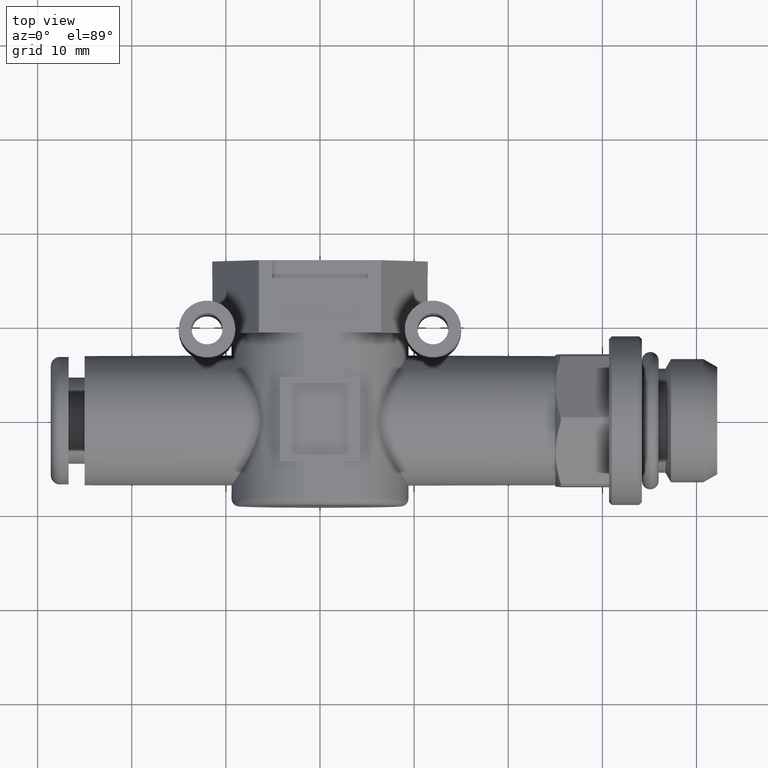
[diagram: clean part render]
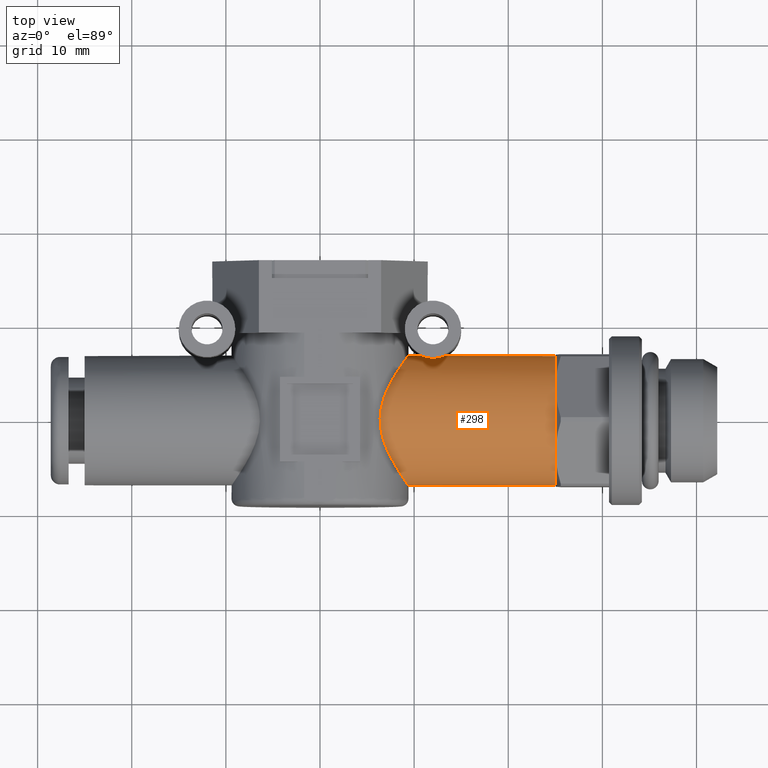
[diagram: same view with one face highlighted and labeled with its STEP entity id]
A machine part, top view. The second image highlights one B-rep face of the part: STEP entity #298.
In plain terms, the highlighted cylindrical surface (bore or boss wall) has radius 6.9 mm, axis along (-1, 0, 0).
Its self-contained STEP definition (entity closure, byte-faithful):
#298 = ADVANCED_FACE( '', ( #671, #672, #673 ), #674, .T. );
#671 = FACE_OUTER_BOUND( '', #1208, .T. );
#672 = FACE_BOUND( '', #1209, .T. );
#673 = FACE_OUTER_BOUND( '', #1210, .T. );
#674 = CYLINDRICAL_SURFACE( '', #1211, 6.90000000000000 );
#1208 = EDGE_LOOP( '', ( #1832 ) );
#1209 = EDGE_LOOP( '', ( #1833 ) );
#1210 = EDGE_LOOP( '', ( #1834 ) );
#1211 = AXIS2_PLACEMENT_3D( '', #1835, #1836, #1837 );
#1832 = ORIENTED_EDGE( '', *, *, #2946, .F. );
#1833 = ORIENTED_EDGE( '', *, *, #2947, .F. );
#1834 = ORIENTED_EDGE( '', *, *, #2948, .T. );
#1835 = CARTESIAN_POINT( '', ( 25.0000000000000, 0.000000000000000, 0.000000000000000 ) );
#1836 = DIRECTION( '', ( -1.00000000000000, -0.000000000000000, 0.000000000000000 ) );
#1837 = DIRECTION( '', ( -0.000000000000000, 0.000000000000000, -1.00000000000000 ) );
#2946 = EDGE_CURVE( '', #3464, #3464, #3465, .T. );
#2947 = EDGE_CURVE( '', #3466, #3466, #3467, .T. );
#2948 = EDGE_CURVE( '', #3468, #3468, #3469, .T. );
#3464 = VERTEX_POINT( '', #4187 );
#3465 = CIRCLE( '', #4188, 6.90000000000000 );
#3466 = VERTEX_POINT( '', #4189 );
#3467 = B_SPLINE_CURVE_WITH_KNOTS( '', 3, ( #4190, #4191, #4192, #4193, #4194, #4195, #4196, #4197, #4198, #4199, #4200, #4201, #4202, #4203, #4204, #4205, #4206, #4207, #4208, #4209, #4210, #4211, #4212, #4213, #4214, #4215, #4216, #4217, #4218, #4219, #4220, #4221, #4222, #4223, #4224, #4225, #4226, #4227, #4228, #4229, #4230, #4231, #4232, #4233 ), .UNSPECIFIED., .T., .F., ( 2, 2, 2, 2, 2, 2, 2, 2, 2, 2, 2, 2, 2, 2, 2, 2, 2, 2, 2, 2, 2, 2, 2, 2 ), ( -0.000663314908686696, 0.000000000000000, 0.000663314908686694, 0.00132662981737339, 0.00198994472606008, 0.00232160218040343, 0.00265325963474678, 0.00298491708909013, 0.00331657454343348, 0.00397988945212018, 0.00464320436080687, 0.00530651926949357, 0.00596983417818027, 0.00663314908686696, 0.00729646399555366, 0.00762812144989701, 0.00795977890424036, 0.00829143635858370, 0.00862309381292705, 0.00895475126727040, 0.00928640872161375, 0.00994972363030044, 0.0106130385389871, 0.0112763534476738 ), .UNSPECIFIED. );
#3468 = VERTEX_POINT( '', #4234 );
#3469 = B_SPLINE_CURVE_WITH_KNOTS( '', 3, ( #4235, #4236, #4237, #4238, #4239, #4240, #4241, #4242, #4243, #4244, #4245, #4246, #4247, #4248, #4249, #4250, #4251, #4252, #4253, #4254, #4255, #4256, #4257, #4258, #4259, #4260, #4261, #4262, #4263, #4264, #4265, #4266, #4267, #4268, #4269, #4270, #4271, #4272, #4273, #4274, #4275, #4276, #4277, #4278, #4279, #4280, #4281, #4282, #4283, #4284, #4285, #4286, #4287, #4288, #4289, #4290, #4291, #4292, #4293, #4294, #4295, #4296, #4297, #4298, #4299, #4300, #4301, #4302, #4303, #4304, #4305, #4306, #4307, #4308, #4309, #4310, #4311, #4312, #4313, #4314, #4315, #4316, #4317, #4318, #4319, #4320, #4321, #4322 ), .UNSPECIFIED., .T., .F., ( 2, 2, 2, 2, 2, 2, 2, 2, 2, 2, 2, 2, 2, 2, 2, 2, 2, 2, 2, 2, 2, 2, 2, 2, 2, 2, 2, 2, 2, 2, 2, 2, 2, 2, 2, 2, 2, 2, 2, 2, 2, 2, 2, 2, 2, 2 ), ( -0.00140801741601047, 0.000000000000000, 0.00140801741601047, 0.00281603483202094, 0.00352004354002617, 0.00422405224803140, 0.00563206966404188, 0.00704008708005235, 0.00844810449606282, 0.00915211320406805, 0.00985612191207329, 0.0105601306200785, 0.0112641393280838, 0.0119681480360890, 0.0126721567440942, 0.0140801741601047, 0.0147841828681099, 0.0154881915761152, 0.0168962089921257, 0.0183042264081361, 0.0197122438241466, 0.0211202612401571, 0.0218242699481623, 0.0225282786561675, 0.0239362960721780, 0.0253443134881885, 0.0260483221961937, 0.0267523309041990, 0.0281603483202094, 0.0295683657362199, 0.0309763831522304, 0.0316803918602356, 0.0323844005682409, 0.0330884092762461, 0.0337924179842513, 0.0344964266922566, 0.0352004354002618, 0.0366084528162723, 0.0373124615242775, 0.0380164702322827, 0.0394244876482932, 0.0408325050643037, 0.0422405224803142, 0.0436485398963246, 0.0450565573123351, 0.0464645747283456 ), .UNSPECIFIED. );
#4187 = CARTESIAN_POINT( '', ( 25.0000000000000, 0.000000000000000, -6.90000000000000 ) );
#4188 = AXIS2_PLACEMENT_3D( '', #5549, #5550, #5551 );
#4189 = CARTESIAN_POINT( '', ( 10.6923303169378, 6.90000000000000, 0.000000000000000 ) );
#4190 = CARTESIAN_POINT( '', ( 10.6923303169378, 6.90000000000000, -0.223372458043953 ) );
#4191 = CARTESIAN_POINT( '', ( 10.6923303169378, 6.90000000000000, 0.223372458043953 ) );
#4192 = CARTESIAN_POINT( '', ( 10.7139512423636, 6.88917016355307, 0.443274782966415 ) );
#4193 = CARTESIAN_POINT( '', ( 10.8053640652712, 6.84766194070503, 0.875604945979324 ) );
#4194 = CARTESIAN_POINT( '', ( 10.8753629535739, 6.81670981671288, 1.08691406947181 ) );
#4195 = CARTESIAN_POINT( '', ( 11.0770753660436, 6.74347713984063, 1.47459519330981 ) );
#4196 = CARTESIAN_POINT( '', ( 11.2105667029262, 6.70023306052220, 1.65431009805005 ) );
#4197 = CARTESIAN_POINT( '', ( 11.4725978894323, 6.64537475773597, 1.85848340608793 ) );
#4198 = CARTESIAN_POINT( '', ( 11.5676859332318, 6.62943124992445, 1.91371398316989 ) );
#4199 = CARTESIAN_POINT( '', ( 11.7778401497762, 6.60637023795532, 1.99186650805541 ) );
#4200 = CARTESIAN_POINT( '', ( 11.8864643491262, 6.60004875053598, 2.01230129905222 ) );
#4201 = CARTESIAN_POINT( '', ( 12.1109445560994, 6.59995180894506, 2.01261922559176 ) );
#4202 = CARTESIAN_POINT( '', ( 12.2213779373212, 6.60631051746791, 1.99206300190535 ) );
#4203 = CARTESIAN_POINT( '', ( 12.4316389207332, 6.62933126197752, 1.91405869182083 ) );
#4204 = CARTESIAN_POINT( '', ( 12.5278741754911, 6.64546274819553, 1.85816701958692 ) );
#4205 = CARTESIAN_POINT( '', ( 12.7895400644762, 6.70027715869431, 1.65412370698782 ) );
#4206 = CARTESIAN_POINT( '', ( 12.9228629822962, 6.74345822909121, 1.47466947075658 ) );
#4207 = CARTESIAN_POINT( '', ( 13.1245271766240, 6.81666645870936, 1.08716941006738 ) );
#4208 = CARTESIAN_POINT( '', ( 13.1947958122588, 6.84773407728518, 0.874889253120810 ) );
#4209 = CARTESIAN_POINT( '', ( 13.2859345838451, 6.88911878010131, 0.443774303102876 ) );
#4210 = CARTESIAN_POINT( '', ( 13.3075610836491, 6.89994740292317, 0.224449333281119 ) );
#4211 = CARTESIAN_POINT( '', ( 13.3077774944374, 6.90005221541269, -0.221203731647836 ) );
#4212 = CARTESIAN_POINT( '', ( 13.2861296884393, 6.88921818097250, -0.441895178940651 ) );
#4213 = CARTESIAN_POINT( '', ( 13.1956764300181, 6.84812327300912, -0.871668590625960 ) );
#4214 = CARTESIAN_POINT( '', ( 13.1255604070059, 6.81708742352270, -1.08459848474594 ) );
#4215 = CARTESIAN_POINT( '', ( 12.9240862248988, 6.74385692111073, -1.47289804149897 ) );
#4216 = CARTESIAN_POINT( '', ( 12.7907975025568, 6.70065738615423, -1.65258797155132 ) );
#4217 = CARTESIAN_POINT( '', ( 12.5300651710270, 6.64586425750404, -1.85673163742504 ) );
#4218 = CARTESIAN_POINT( '', ( 12.4338046558688, 6.62967983387610, -1.91285203674129 ) );
#4219 = CARTESIAN_POINT( '', ( 12.2254230785342, 6.60664522577093, -1.99095365967340 ) );
#4220 = CARTESIAN_POINT( '', ( 12.1147350630086, 6.60011989315509, -2.01206798101947 ) );
#4221 = CARTESIAN_POINT( '', ( 11.8916227491032, 6.59988347532709, -2.01284333130271 ) );
#4222 = CARTESIAN_POINT( '', ( 11.7800355546668, 6.60621940774216, -1.99235747638848 ) );
#4223 = CARTESIAN_POINT( '', ( 11.5704983727618, 6.62903467809028, -1.91507765211409 ) );
#4224 = CARTESIAN_POINT( '', ( 11.4739866875253, 6.64511693112195, -1.85940942255562 ) );
#4225 = CARTESIAN_POINT( '', ( 11.2986221775463, 6.68176541282014, -1.72307672406444 ) );
#4226 = CARTESIAN_POINT( '', ( 11.2223082529420, 6.70169241225708, -1.64471454590283 ) );
#4227 = CARTESIAN_POINT( '', ( 11.0867370664864, 6.74151401247438, -1.47300914648214 ) );
#4228 = CARTESIAN_POINT( '', ( 11.0273684885588, 6.76153552003812, -1.37890772815553 ) );
#4229 = CARTESIAN_POINT( '', ( 10.8756926157169, 6.81656623037998, -1.08785167778526 ) );
#4230 = CARTESIAN_POINT( '', ( 10.8056785633163, 6.84752264253858, -0.876784473247790 ) );
#4231 = CARTESIAN_POINT( '', ( 10.7139825959845, 6.88915243253530, -0.443729775764339 ) );
#4232 = CARTESIAN_POINT( '', ( 10.6923303169378, 6.90000000000000, -0.223372458043953 ) );
#4233 = CARTESIAN_POINT( '', ( 10.6923303169378, 6.90000000000000, 0.223372458043953 ) );
#4234 = CARTESIAN_POINT( '', ( 9.40000000000000, -6.90000000000000, -5.75583995599256E-016 ) );
#4235 = CARTESIAN_POINT( '', ( 9.40000000000000, -6.90000000000000, 0.477079065304053 ) );
#4236 = CARTESIAN_POINT( '', ( 9.40000000000000, -6.90000000000000, -0.477079065304053 ) );
#4237 = CARTESIAN_POINT( '', ( 9.36392411072684, -6.85107836074552, -0.943073842527662 ) );
#4238 = CARTESIAN_POINT( '', ( 9.22673369861786, -6.66234303371078, -1.85468279732706 ) );
#4239 = CARTESIAN_POINT( '', ( 9.12400491665865, -6.52024262780445, -2.30267463260368 ) );
#4240 = CARTESIAN_POINT( '', ( 8.93494415818265, -6.25197981933715, -2.92817638400928 ) );
#4241 = CARTESIAN_POINT( '', ( 8.86593388730158, -6.15312390634133, -3.13037575245986 ) );
#4242 = CARTESIAN_POINT( '', ( 8.71740446770089, -5.93711131496438, -3.52291007437030 ) );
#4243 = CARTESIAN_POINT( '', ( 8.63748678677233, -5.81935854344500, -3.71407435473278 ) );
#4244 = CARTESIAN_POINT( '', ( 8.38709377618043, -5.44319441802731, -4.26365608441352 ) );
#4245 = CARTESIAN_POINT( '', ( 8.20686531198224, -5.16359890093293, -4.59730705478497 ) );
#4246 = CARTESIAN_POINT( '', ( 7.83387537511766, -4.54749587724643, -5.20752023636185 ) );
#4247 = CARTESIAN_POINT( '', ( 7.64012926035198, -4.20901641855955, -5.48460057705023 ) );
#4248 = CARTESIAN_POINT( '', ( 7.26978086708697, -3.49198481558569, -5.96680021026368 ) );
#4249 = CARTESIAN_POINT( '', ( 7.09140143553096, -3.11124664908091, -6.17476780252409 ) );
#4250 = CARTESIAN_POINT( '', ( 6.85222938294929, -2.49770251720362, -6.43590595154878 ) );
#4251 = CARTESIAN_POINT( '', ( 6.77694501651860, -2.28463555284390, -6.51476206968361 ) );
#4252 = CARTESIAN_POINT( '', ( 6.64327188142851, -1.85084768227445, -6.65101851530470 ) );
#4253 = CARTESIAN_POINT( '', ( 6.58464127715640, -1.62976392820553, -6.70872964492827 ) );
#4254 = CARTESIAN_POINT( '', ( 6.48764044001397, -1.17818003367596, -6.80257860804758 ) );
#4255 = CARTESIAN_POINT( '', ( 6.44927446936839, -0.947680532793927, -6.83872360915415 ) );
#4256 = CARTESIAN_POINT( '', ( 6.39699449431941, -0.475915718738623, -6.88765150274725 ) );
#4257 = CARTESIAN_POINT( '', ( 6.38372470262382, -0.239200582522910, -6.89985934373102 ) );
#4258 = CARTESIAN_POINT( '', ( 6.38342325573405, 0.231015803866398, -6.90013822907306 ) );
#4259 = CARTESIAN_POINT( '', ( 6.39629871489044, 0.465304450284490, -6.88829247575381 ) );
#4260 = CARTESIAN_POINT( '', ( 6.44711368461325, 0.932279917016811, -6.84075548600505 ) );
#4261 = CARTESIAN_POINT( '', ( 6.48551137299522, 1.16664395889886, -6.80460724087781 ) );
#4262 = CARTESIAN_POINT( '', ( 6.63079100478988, 1.84775290002264, -6.66413989485706 ) );
#4263 = CARTESIAN_POINT( '', ( 6.76704826838905, 2.27737397826084, -6.52860960117789 ) );
#4264 = CARTESIAN_POINT( '', ( 7.00634212732634, 2.89390782466992, -6.26778201540841 ) );
#4265 = CARTESIAN_POINT( '', ( 7.09206366428060, 3.09461723653541, -6.17100296742761 ) );
#4266 = CARTESIAN_POINT( '', ( 7.26831478526354, 3.47961041499382, -5.96240260503507 ) );
#4267 = CARTESIAN_POINT( '', ( 7.35928361104620, 3.66505242439573, -5.85012248351791 ) );
#4268 = CARTESIAN_POINT( '', ( 7.63654949311563, 4.20251165183724, -5.48954143796139 ) );
#4269 = CARTESIAN_POINT( '', ( 7.82710363960502, 4.53593779208348, -5.21781823880061 ) );
#4270 = CARTESIAN_POINT( '', ( 8.20268109665764, 5.15704929606045, -4.60491057294427 ) );
#4271 = CARTESIAN_POINT( '', ( 8.38315245333787, 5.43705972575660, -4.27087214156552 ) );
#4272 = CARTESIAN_POINT( '', ( 8.71339513282997, 5.93360161675560, -3.54885040043676 ) );
#4273 = CARTESIAN_POINT( '', ( 8.86428334505474, 6.15160175024531, -3.15881087779594 ) );
#4274 = CARTESIAN_POINT( '', ( 9.12059928844106, 6.51552118042125, -2.31695360393456 ) );
#4275 = CARTESIAN_POINT( '', ( 9.22190796594332, 6.65567093822363, -1.87882963895178 ) );
#4276 = CARTESIAN_POINT( '', ( 9.32677734206764, 6.79999028417709, -1.19357498617676 ) );
#4277 = CARTESIAN_POINT( '', ( 9.35393144327802, 6.83712811323091, -0.959219551558725 ) );
#4278 = CARTESIAN_POINT( '', ( 9.39037785082055, 6.88690667661241, -0.486764226763239 ) );
#4279 = CARTESIAN_POINT( '', ( 9.39972542035229, 6.89962593477217, -0.249300120112782 ) );
#4280 = CARTESIAN_POINT( '', ( 9.40053130530115, 6.90072380761627, 0.466867529042098 ) );
#4281 = CARTESIAN_POINT( '', ( 9.36489034445907, 6.85239555419059, 0.933674466414788 ) );
#4282 = CARTESIAN_POINT( '', ( 9.22842113601974, 6.66467631105098, 1.84639175400069 ) );
#4283 = CARTESIAN_POINT( '', ( 9.12594892615210, 6.52295858025507, 2.29507084434862 ) );
#4284 = CARTESIAN_POINT( '', ( 8.93711338524297, 6.25507848631301, 2.92157112443627 ) );
#4285 = CARTESIAN_POINT( '', ( 8.86815835418895, 6.15632760961456, 3.12408650359753 ) );
#4286 = CARTESIAN_POINT( '', ( 8.71970608495804, 5.94048914231696, 3.51722545039084 ) );
#4287 = CARTESIAN_POINT( '', ( 8.63981526474076, 5.82281342780031, 3.70867082902387 ) );
#4288 = CARTESIAN_POINT( '', ( 8.38937621273163, 5.44670789222667, 4.25922003057515 ) );
#4289 = CARTESIAN_POINT( '', ( 8.20905951761493, 5.16708526361787, 4.59342595241961 ) );
#4290 = CARTESIAN_POINT( '', ( 7.83581776479568, 4.55084080152669, 5.20463064021058 ) );
#4291 = CARTESIAN_POINT( '', ( 7.64188141385334, 4.21220422682517, 5.48218413188963 ) );
#4292 = CARTESIAN_POINT( '', ( 7.27111085070199, 3.49476263976295, 5.96520254443580 ) );
#4293 = CARTESIAN_POINT( '', ( 7.09250599128354, 3.11378778249588, 6.17351284959538 ) );
#4294 = CARTESIAN_POINT( '', ( 6.85300504525107, 2.49983728065319, 6.43508332384993 ) );
#4295 = CARTESIAN_POINT( '', ( 6.77760948193754, 2.28661945975137, 6.51407316284140 ) );
#4296 = CARTESIAN_POINT( '', ( 6.64372150650404, 1.85247772457544, 6.65057170508792 ) );
#4297 = CARTESIAN_POINT( '', ( 6.58499353539737, 1.63121054954961, 6.70838506524126 ) );
#4298 = CARTESIAN_POINT( '', ( 6.48782783334593, 1.17924466964023, 6.80240105033797 ) );
#4299 = CARTESIAN_POINT( '', ( 6.44939437801225, 0.948546606405433, 6.83861086567778 ) );
#4300 = CARTESIAN_POINT( '', ( 6.39702055402216, 0.476366235127084, 6.88762763560287 ) );
#4301 = CARTESIAN_POINT( '', ( 6.38372502220728, 0.239422516248013, 6.89985904806641 ) );
#4302 = CARTESIAN_POINT( '', ( 6.38342294232099, -0.231228118275510, 6.90013851902910 ) );
#4303 = CARTESIAN_POINT( '', ( 6.39632222257764, -0.465732373946127, 6.88827096986586 ) );
#4304 = CARTESIAN_POINT( '', ( 6.44722997708257, -0.933136135026934, 6.84064620865202 ) );
#4305 = CARTESIAN_POINT( '', ( 6.48569735896868, -1.16771039079440, 6.80443111974400 ) );
#4306 = CARTESIAN_POINT( '', ( 6.63122132375690, -1.84937977257018, 6.66371639081730 ) );
#4307 = CARTESIAN_POINT( '', ( 6.76769595952251, -2.27933724636236, 6.52795205003597 ) );
#4308 = CARTESIAN_POINT( '', ( 7.00734206589306, -2.89633565889104, 6.26666768016241 ) );
#4309 = CARTESIAN_POINT( '', ( 7.09317489095685, -3.09716694698827, 6.16973007278199 ) );
#4310 = CARTESIAN_POINT( '', ( 7.26964173048899, -3.48238480835805, 5.96078923591701 ) );
#4311 = CARTESIAN_POINT( '', ( 7.36071641782349, -3.66793069416507, 5.84832530197086 ) );
#4312 = CARTESIAN_POINT( '', ( 7.63828740303552, -4.20567616747878, 5.48714731292904 ) );
#4313 = CARTESIAN_POINT( '', ( 7.82902861852479, -4.53926017274211, 5.21496696102698 ) );
#4314 = CARTESIAN_POINT( '', ( 8.20491402810414, -5.16060151675585, 4.60097329982504 ) );
#4315 = CARTESIAN_POINT( '', ( 8.38542147468116, -5.44055435624708, 4.26646623925434 ) );
#4316 = CARTESIAN_POINT( '', ( 8.71569532691859, -5.93697594966541, 3.54325873273045 ) );
#4317 = CARTESIAN_POINT( '', ( 8.86659096938920, -6.15492138932021, 3.15239800829120 ) );
#4318 = CARTESIAN_POINT( '', ( 9.12254462523336, -6.51823920469565, 2.30937831066251 ) );
#4319 = CARTESIAN_POINT( '', ( 9.22360332257670, -6.65801637558270, 1.87063901960954 ) );
#4320 = CARTESIAN_POINT( '', ( 9.36274069264229, -6.84946983955248, 0.955633463349800 ) );
#4321 = CARTESIAN_POINT( '', ( 9.40000000000000, -6.90000000000000, 0.477079065304053 ) );
#4322 = CARTESIAN_POINT( '', ( 9.40000000000000, -6.90000000000000, -0.477079065304053 ) );
#5549 = CARTESIAN_POINT( '', ( 25.0000000000000, 0.000000000000000, 0.000000000000000 ) );
#5550 = DIRECTION( '', ( 1.00000000000000, 0.000000000000000, -0.000000000000000 ) );
#5551 = DIRECTION( '', ( -0.000000000000000, 0.000000000000000, -1.00000000000000 ) );